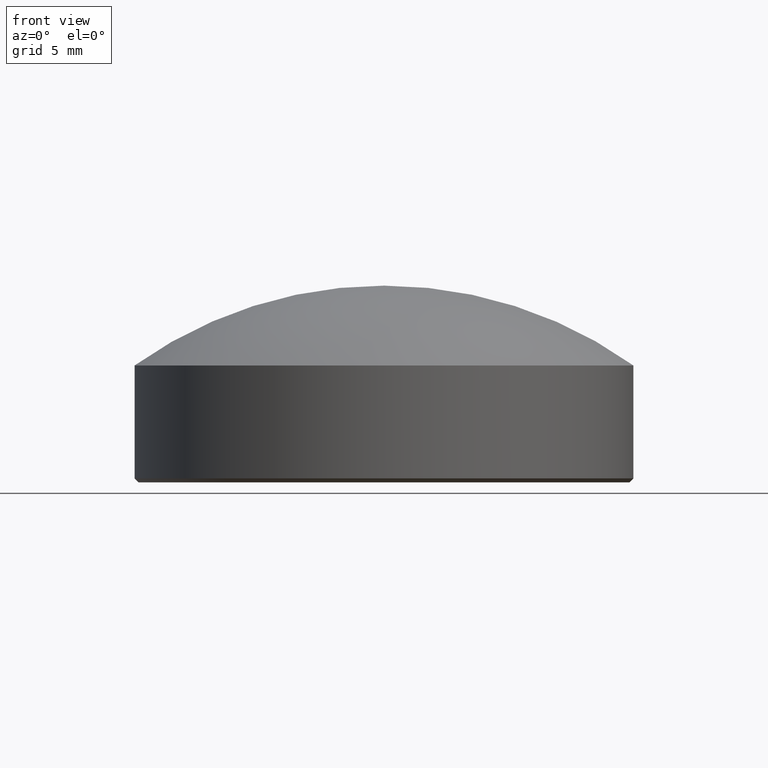
[diagram: clean part render]
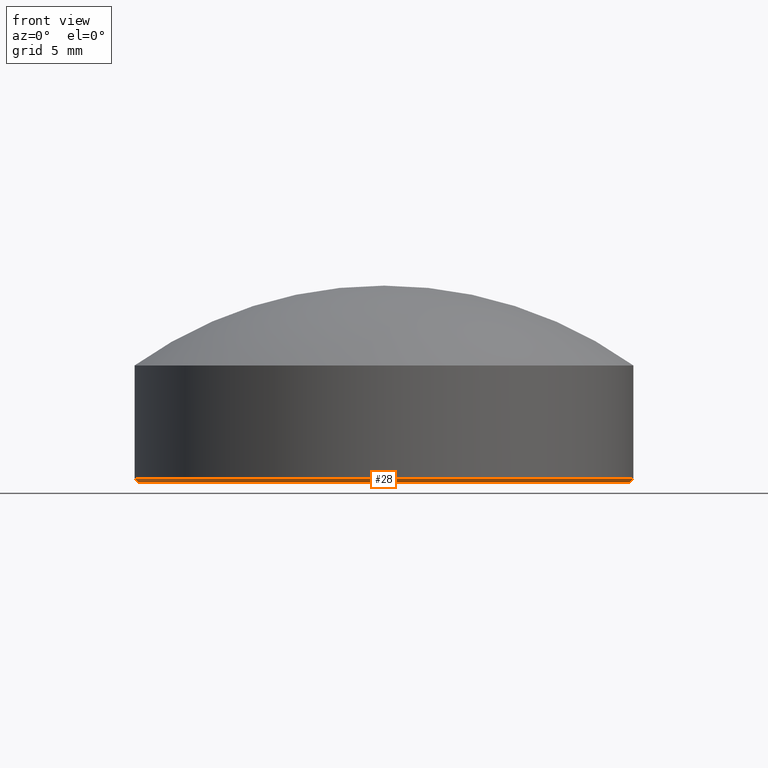
[diagram: same view with one face highlighted and labeled with its STEP entity id]
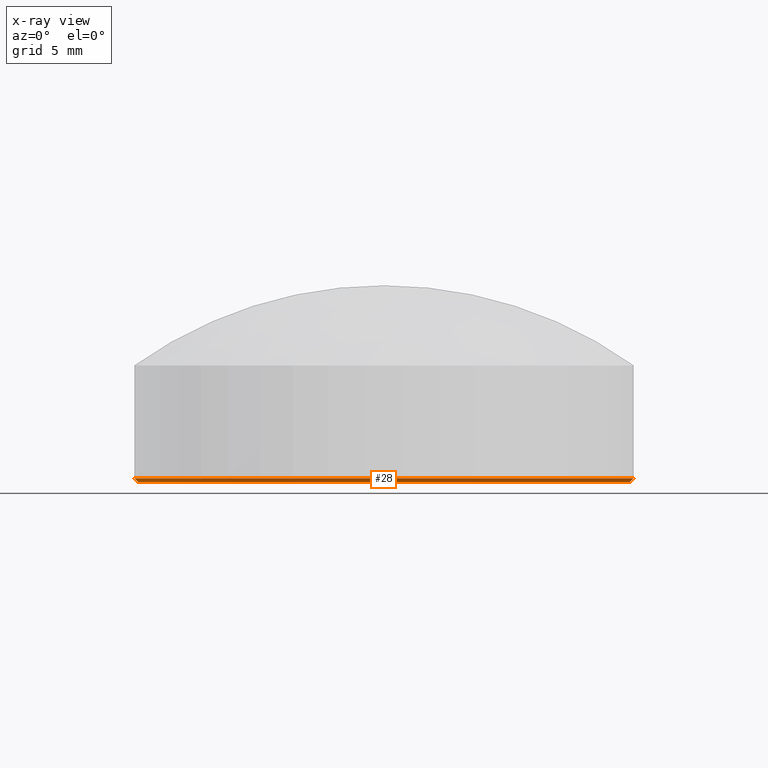
[diagram: x-ray of the same camera — body ghosted, the highlighted face saturated]
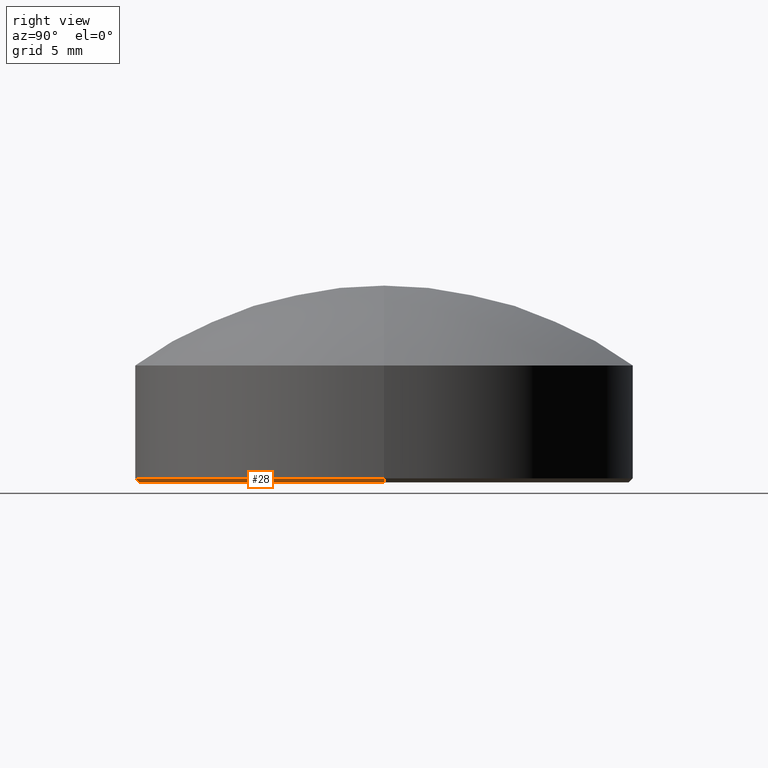
[diagram: same view with one face highlighted and labeled with its STEP entity id]
A machine part, front view. The second image highlights one B-rep face of the part: STEP entity #28.
The next image is the same camera in x-ray: the body ghosted, the highlighted face saturated — about 0% of this face is hidden behind the body in this view.
A second angle (right view) of the same face is appended — the face is thin or edge-on in the first view.
In plain terms, the highlighted conical surface has half-angle 45 deg.
Its self-contained STEP definition (entity closure, byte-faithful):
#4 = CARTESIAN_POINT ( 'NONE',  ( 0.000000000000000000, 0.000000000000000000, 0.2000000000000178857 ) ) ;
#5 = DIRECTION ( 'NONE',  ( 1.000000000000000000, 0.000000000000000000, 0.000000000000000000 ) ) ;
#24 = CARTESIAN_POINT ( 'NONE',  ( 0.000000000000000000, 0.000000000000000000, 0.000000000000000000 ) ) ;
#28 = ADVANCED_FACE ( 'NONE', ( #34 ), #83, .T. ) ;
#31 = CARTESIAN_POINT ( 'NONE',  ( 12.50000000000000000, 0.000000000000000000, 0.2000000000000178857 ) ) ;
#32 = CARTESIAN_POINT ( 'NONE',  ( 12.29999999999998295, 0.000000000000000000, 0.000000000000000000 ) ) ;
#33 = VERTEX_POINT ( 'NONE', #161 ) ;
#34 = FACE_OUTER_BOUND ( 'NONE', #93, .T. ) ;
#43 = VERTEX_POINT ( 'NONE', #100 ) ;
#50 = LINE ( 'NONE', #31, #75 ) ;
#51 = ORIENTED_EDGE ( 'NONE', *, *, #187, .F. ) ;
#56 = CARTESIAN_POINT ( 'NONE',  ( -12.29999999999998295, 1.518562030942716981E-15, 0.000000000000000000 ) ) ;
#62 = CIRCLE ( 'NONE', #211, 12.50000000000000000 ) ;
#67 = DIRECTION ( 'NONE',  ( 0.7071067811865474617, 0.000000000000000000, 0.7071067811865474617 ) ) ;
#75 = VECTOR ( 'NONE', #67, 1000.000000000000114 ) ;
#79 = VERTEX_POINT ( 'NONE', #32 ) ;
#83 = CONICAL_SURFACE ( 'NONE', #197, 12.50000000000000000, 0.7853981633974482790 ) ;
#86 = DIRECTION ( 'NONE',  ( -0.000000000000000000, -0.000000000000000000, 1.000000000000000000 ) ) ;
#87 = CIRCLE ( 'NONE', #203, 12.29999999999998295 ) ;
#90 = DIRECTION ( 'NONE',  ( -0.000000000000000000, -0.000000000000000000, -1.000000000000000000 ) ) ;
#93 = EDGE_LOOP ( 'NONE', ( #116, #51, #210, #119 ) ) ;
#99 = DIRECTION ( 'NONE',  ( 1.000000000000000000, 0.000000000000000000, 0.000000000000000000 ) ) ;
#100 = CARTESIAN_POINT ( 'NONE',  ( -12.50000000000000000, 0.000000000000000000, 0.2000000000000178857 ) ) ;
#104 = CARTESIAN_POINT ( 'NONE',  ( -12.50000000000000000, 1.530808498934191521E-15, 0.2000000000000178857 ) ) ;
#105 = EDGE_CURVE ( 'NONE', #79, #33, #50, .T. ) ;
#116 = ORIENTED_EDGE ( 'NONE', *, *, #153, .F. ) ;
#117 = VERTEX_POINT ( 'NONE', #56 ) ;
#119 = ORIENTED_EDGE ( 'NONE', *, *, #180, .F. ) ;
#134 = DIRECTION ( 'NONE',  ( 1.000000000000000000, 0.000000000000000000, 0.000000000000000000 ) ) ;
#146 = DIRECTION ( 'NONE',  ( -0.000000000000000000, -0.000000000000000000, 1.000000000000000000 ) ) ;
#150 = DIRECTION ( 'NONE',  ( -0.7071067811865474617, 8.659560562354932858E-17, 0.7071067811865474617 ) ) ;
#153 = EDGE_CURVE ( 'NONE', #117, #43, #185, .T. ) ;
#157 = CARTESIAN_POINT ( 'NONE',  ( 0.000000000000000000, 0.000000000000000000, 0.2000000000000178857 ) ) ;
#161 = CARTESIAN_POINT ( 'NONE',  ( 12.50000000000000000, 1.530808498934191127E-15, 0.2000000000000178857 ) ) ;
#177 = VECTOR ( 'NONE', #150, 1000.000000000000114 ) ;
#180 = EDGE_CURVE ( 'NONE', #43, #33, #62, .T. ) ;
#185 = LINE ( 'NONE', #104, #177 ) ;
#187 = EDGE_CURVE ( 'NONE', #79, #117, #87, .T. ) ;
#197 = AXIS2_PLACEMENT_3D ( 'NONE', #157, #146, #99 ) ;
#203 = AXIS2_PLACEMENT_3D ( 'NONE', #24, #90, #5 ) ;
#210 = ORIENTED_EDGE ( 'NONE', *, *, #105, .T. ) ;
#211 = AXIS2_PLACEMENT_3D ( 'NONE', #4, #86, #134 ) ;